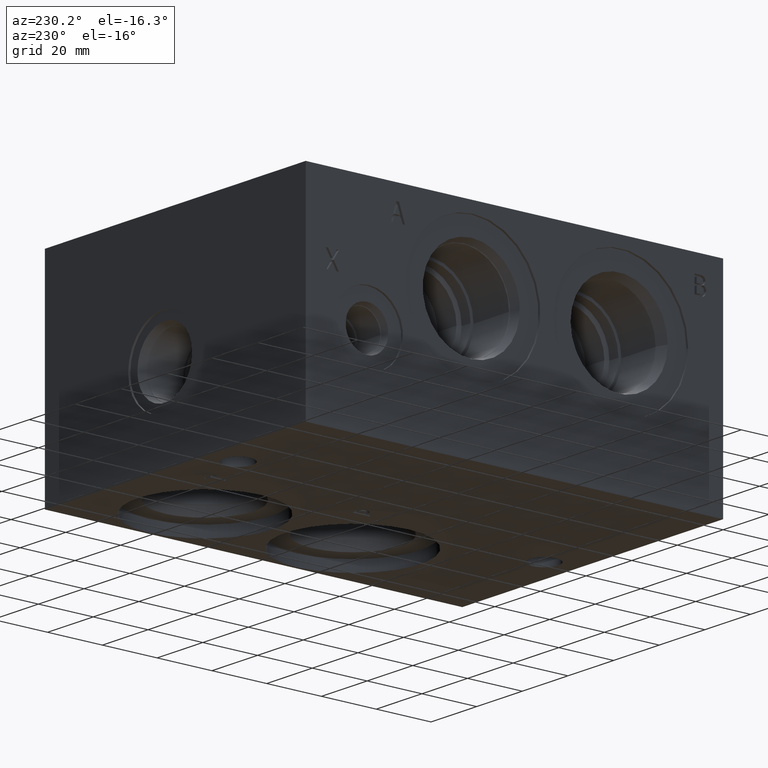
[diagram: clean part render]
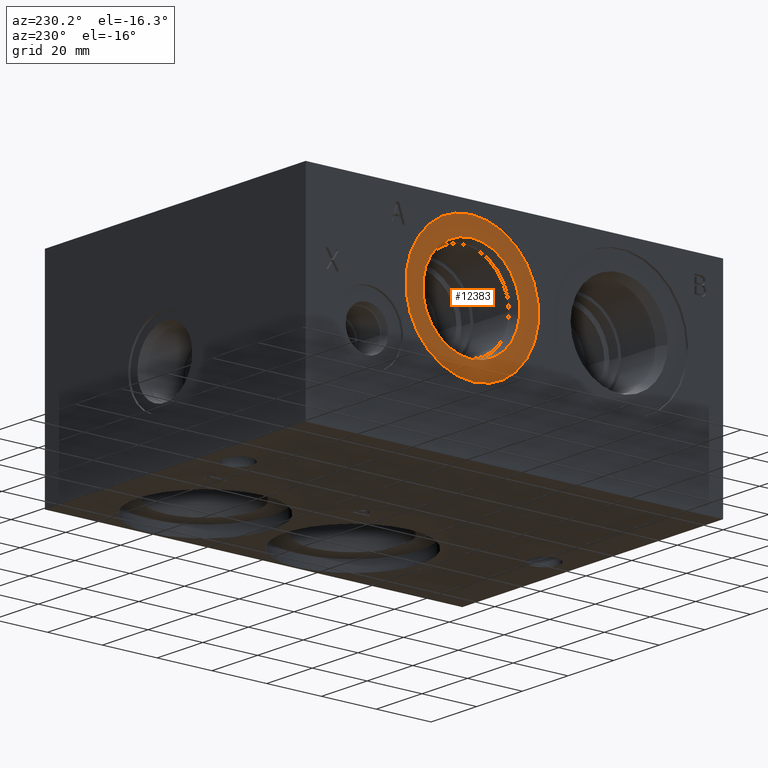
[diagram: same view with one face highlighted and labeled with its STEP entity id]
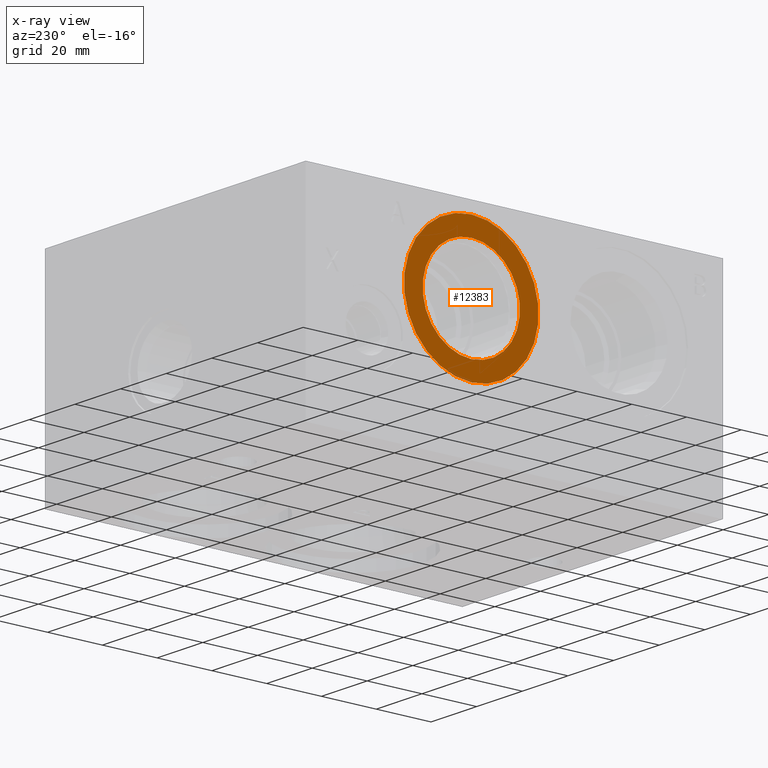
[diagram: x-ray of the same camera — body ghosted, the highlighted face saturated]
A machine part, auxiliary view. The second image highlights one B-rep face of the part: STEP entity #12383.
The next image is the same camera in x-ray: the body ghosted, the highlighted face saturated — about 0% of this face is hidden behind the body in this view.
In plain terms, the highlighted planar face has unit normal (1, 0, 0).
Its self-contained STEP definition (entity closure, byte-faithful):
#283=CIRCLE('',#13012,24.5618);
#284=CIRCLE('',#13013,24.5618);
#285=CIRCLE('',#13015,17.7546);
#286=CIRCLE('',#13016,17.7546);
#486=FACE_BOUND('',#2134,.T.);
#847=PLANE('',#13014);
#1426=FACE_OUTER_BOUND('',#2133,.T.);
#2133=EDGE_LOOP('',(#10772,#10773));
#2134=EDGE_LOOP('',(#10774,#10775));
#5849=VERTEX_POINT('',#21278);
#5850=VERTEX_POINT('',#21280);
#5851=VERTEX_POINT('',#21284);
#5852=VERTEX_POINT('',#21285);
#7536=EDGE_CURVE('',#5849,#5850,#283,.T.);
#7537=EDGE_CURVE('',#5850,#5849,#284,.T.);
#7538=EDGE_CURVE('',#5851,#5852,#285,.T.);
#7539=EDGE_CURVE('',#5852,#5851,#286,.T.);
#10772=ORIENTED_EDGE('',*,*,#7537,.F.);
#10773=ORIENTED_EDGE('',*,*,#7536,.F.);
#10774=ORIENTED_EDGE('',*,*,#7538,.T.);
#10775=ORIENTED_EDGE('',*,*,#7539,.T.);
#12383=ADVANCED_FACE('',(#1426,#486),#847,.F.);
#13012=AXIS2_PLACEMENT_3D('',#21281,#15355,#15356);
#13013=AXIS2_PLACEMENT_3D('',#21282,#15357,#15358);
#13014=AXIS2_PLACEMENT_3D('',#21283,#15359,#15360);
#13015=AXIS2_PLACEMENT_3D('',#21286,#15361,#15362);
#13016=AXIS2_PLACEMENT_3D('',#21287,#15363,#15364);
#15355=DIRECTION('center_axis',(1.,0.,0.));
#15356=DIRECTION('ref_axis',(0.,0.,-1.));
#15357=DIRECTION('center_axis',(1.,0.,0.));
#15358=DIRECTION('ref_axis',(0.,0.,-1.));
#15359=DIRECTION('center_axis',(1.,0.,0.));
#15360=DIRECTION('ref_axis',(0.,0.,-1.));
#15361=DIRECTION('center_axis',(1.,0.,0.));
#15362=DIRECTION('ref_axis',(0.,0.,-1.));
#15363=DIRECTION('center_axis',(1.,0.,0.));
#15364=DIRECTION('ref_axis',(0.,0.,-1.));
#21278=CARTESIAN_POINT('',(0.7874,91.2876,23.0632));
#21280=CARTESIAN_POINT('',(0.7874,91.2876,72.1868));
#21281=CARTESIAN_POINT('Origin',(0.7874,91.2876,47.625));
#21282=CARTESIAN_POINT('Origin',(0.7874,91.2876,47.625));
#21283=CARTESIAN_POINT('Origin',(0.7874,91.2876,65.3796));
#21284=CARTESIAN_POINT('',(0.7874,91.2876,65.3796));
#21285=CARTESIAN_POINT('',(0.787399999999998,91.2876,29.8704));
#21286=CARTESIAN_POINT('Origin',(0.7874,91.2876,47.625));
#21287=CARTESIAN_POINT('Origin',(0.7874,91.2876,47.625));